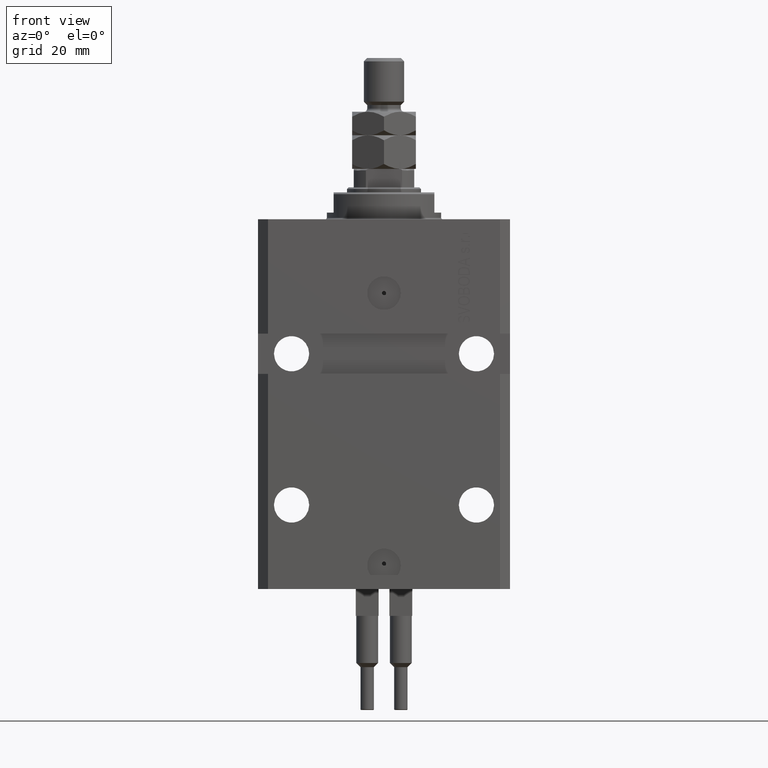
[diagram: clean part render]
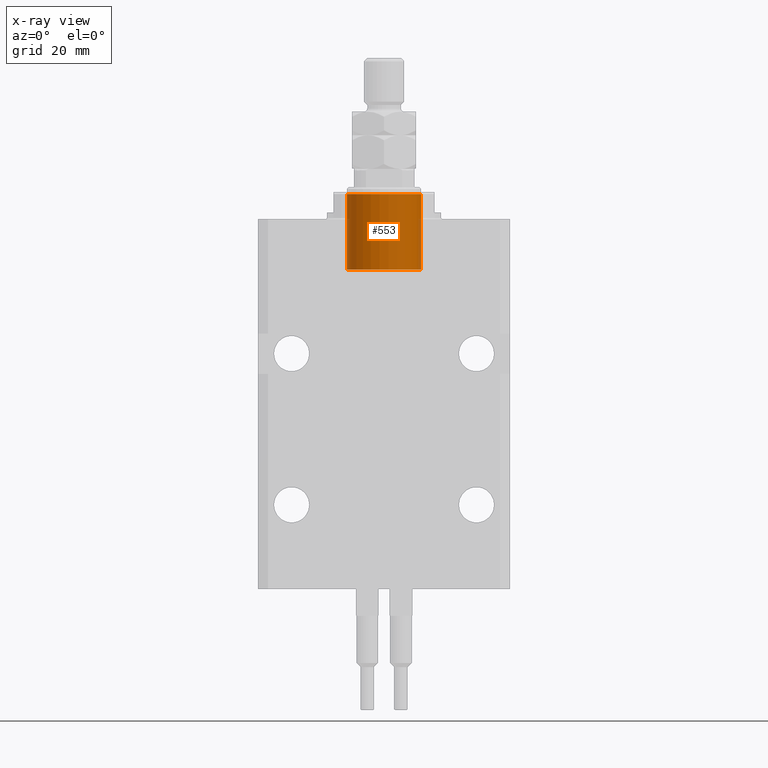
[diagram: x-ray — body ghosted, one internal face saturated and labeled with its STEP entity id]
A machine part, front view, then the same camera in x-ray: the body is ghosted and one INTERNAL B-rep face — a face not visible from any outside direction — is saturated and labeled: STEP entity #553.
In plain terms, the highlighted cylindrical surface (partial cylindrical patch) has radius 11 mm, axis along (0, -0, 1).
Its self-contained STEP definition (entity closure, byte-faithful):
#553 = ADVANCED_FACE ( 'NONE', ( #27133 ), #23062, .F. ) ;
#1164 = EDGE_CURVE ( 'NONE', #8871, #25838, #17190, .T. ) ;
#1738 = AXIS2_PLACEMENT_3D ( 'NONE', #5687, #36688, #1883 ) ;
#1883 = DIRECTION ( 'NONE',  ( -1.000000000000000000, 0.000000000000000000, 0.000000000000000000 ) ) ;
#2177 = CARTESIAN_POINT ( 'NONE',  ( 11.00000000000000000, 1.347111479062088405E-15, -7.500000000000000000 ) ) ;
#5569 = EDGE_CURVE ( 'NONE', #8044, #25838, #13628, .T. ) ;
#5687 = CARTESIAN_POINT ( 'NONE',  ( 0.000000000000000000, 0.000000000000000000, -7.500000000000000000 ) ) ;
#8044 = VERTEX_POINT ( 'NONE', #39979 ) ;
#8065 = DIRECTION ( 'NONE',  ( -0.000000000000000000, -0.000000000000000000, -1.000000000000000000 ) ) ;
#8871 = VERTEX_POINT ( 'NONE', #2177 ) ;
#9482 = DIRECTION ( 'NONE',  ( -0.000000000000000000, -0.000000000000000000, -1.000000000000000000 ) ) ;
#10486 = LINE ( 'NONE', #21681, #18062 ) ;
#10945 = CARTESIAN_POINT ( 'NONE',  ( 0.000000000000000000, 0.000000000000000000, 15.00000000000000000 ) ) ;
#11111 = CARTESIAN_POINT ( 'NONE',  ( 0.000000000000000000, 0.000000000000000000, 15.00000000000000000 ) ) ;
#12147 = ORIENTED_EDGE ( 'NONE', *, *, #44590, .F. ) ;
#12455 = VECTOR ( 'NONE', #14373, 1000.000000000000000 ) ;
#12662 = EDGE_LOOP ( 'NONE', ( #12147, #19039, #38320, #33229 ) ) ;
#13628 = LINE ( 'NONE', #49223, #12455 ) ;
#14373 = DIRECTION ( 'NONE',  ( -0.000000000000000000, -0.000000000000000000, -1.000000000000000000 ) ) ;
#14474 = VERTEX_POINT ( 'NONE', #22176 ) ;
#17190 = CIRCLE ( 'NONE', #1738, 11.00000000000000000 ) ;
#18062 = VECTOR ( 'NONE', #9482, 1000.000000000000000 ) ;
#19039 = ORIENTED_EDGE ( 'NONE', *, *, #42723, .T. ) ;
#21681 = CARTESIAN_POINT ( 'NONE',  ( 11.00000000000000000, 1.347111479062088405E-15, 15.00000000000000000 ) ) ;
#22081 = CIRCLE ( 'NONE', #40076, 11.00000000000000000 ) ;
#22176 = CARTESIAN_POINT ( 'NONE',  ( 11.00000000000000000, 1.347111479062088405E-15, 15.00000000000000000 ) ) ;
#23062 = CYLINDRICAL_SURFACE ( 'NONE', #48815, 11.00000000000000000 ) ;
#25838 = VERTEX_POINT ( 'NONE', #28154 ) ;
#26447 = DIRECTION ( 'NONE',  ( 0.000000000000000000, 0.000000000000000000, -1.000000000000000000 ) ) ;
#26610 = DIRECTION ( 'NONE',  ( -1.000000000000000000, 0.000000000000000000, 0.000000000000000000 ) ) ;
#27133 = FACE_OUTER_BOUND ( 'NONE', #12662, .T. ) ;
#28154 = CARTESIAN_POINT ( 'NONE',  ( -11.00000000000000000, 0.000000000000000000, -7.500000000000000000 ) ) ;
#33229 = ORIENTED_EDGE ( 'NONE', *, *, #5569, .F. ) ;
#36688 = DIRECTION ( 'NONE',  ( 0.000000000000000000, 0.000000000000000000, -1.000000000000000000 ) ) ;
#38320 = ORIENTED_EDGE ( 'NONE', *, *, #1164, .T. ) ;
#39979 = CARTESIAN_POINT ( 'NONE',  ( -11.00000000000000000, 0.000000000000000000, 15.00000000000000000 ) ) ;
#40076 = AXIS2_PLACEMENT_3D ( 'NONE', #10945, #26447, #49867 ) ;
#42723 = EDGE_CURVE ( 'NONE', #14474, #8871, #10486, .T. ) ;
#44590 = EDGE_CURVE ( 'NONE', #14474, #8044, #22081, .T. ) ;
#48815 = AXIS2_PLACEMENT_3D ( 'NONE', #11111, #8065, #26610 ) ;
#49223 = CARTESIAN_POINT ( 'NONE',  ( -11.00000000000000000, 0.000000000000000000, 15.00000000000000000 ) ) ;
#49867 = DIRECTION ( 'NONE',  ( -1.000000000000000000, 0.000000000000000000, 0.000000000000000000 ) ) ;